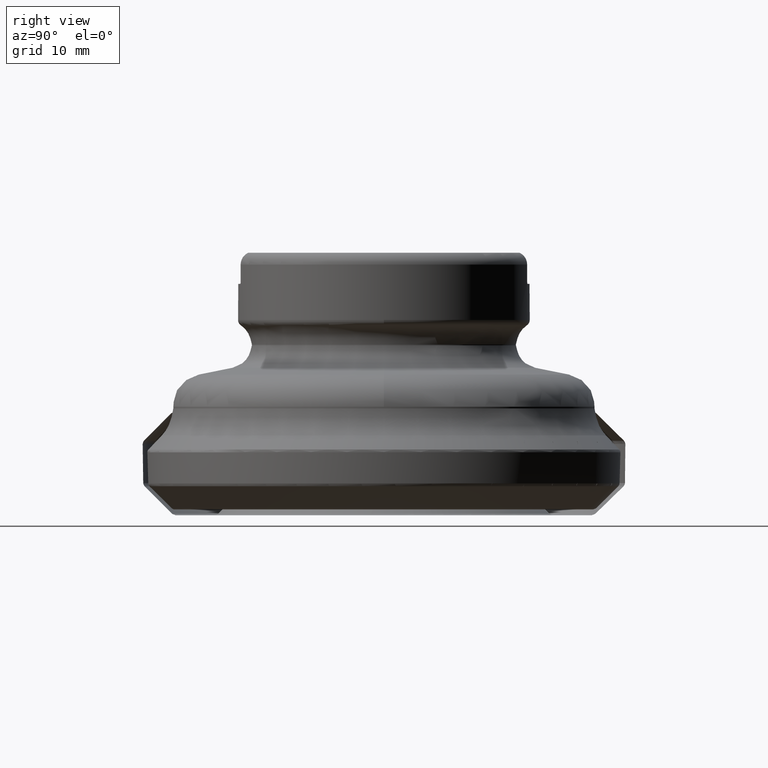
[diagram: clean part render]
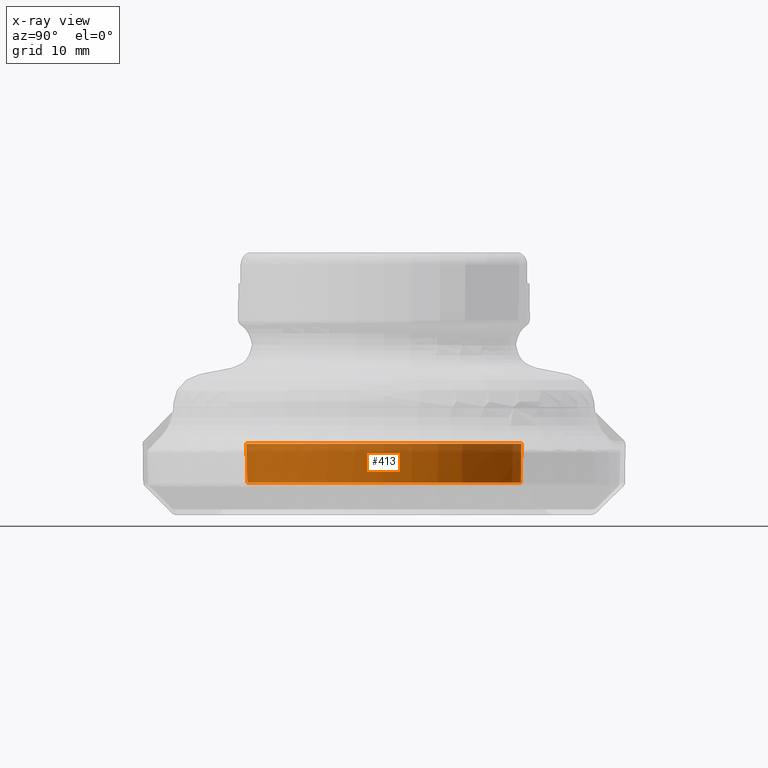
[diagram: x-ray — body ghosted, one internal face saturated and labeled with its STEP entity id]
A machine part, right view, then the same camera in x-ray: the body is ghosted and one INTERNAL B-rep face — a face not visible from any outside direction — is saturated and labeled: STEP entity #413.
In plain terms, the highlighted face is a SurfaceOfRevolution surface.
Its self-contained STEP definition (entity closure, byte-faithful):
#134=SURFACE_OF_REVOLUTION('',#320,#159);
#159=AXIS1_PLACEMENT('',#2100,#1360);
#274=FACE_BOUND('',#554,.T.);
#275=FACE_BOUND('',#555,.T.);
#320=LINE('',#2099,#348);
#348=VECTOR('',#1359,5.97815706144227);
#413=ADVANCED_FACE('',(#274,#275),#134,.F.);
#554=EDGE_LOOP('',(#799));
#555=EDGE_LOOP('',(#800));
#593=CIRCLE('',#1104,20.9790301102204);
#608=CIRCLE('',#1119,20.886732044877);
#799=ORIENTED_EDGE('',*,*,#976,.T.);
#800=ORIENTED_EDGE('',*,*,#961,.F.);
#865=VERTEX_POINT('',#2014);
#880=VERTEX_POINT('',#2093);
#961=EDGE_CURVE('',#865,#865,#593,.T.);
#976=EDGE_CURVE('',#880,#880,#608,.T.);
#1104=AXIS2_PLACEMENT_3D('',#2013,#1305,#1306);
#1119=AXIS2_PLACEMENT_3D('',#2092,#1356,#1357);
#1305=DIRECTION('',(1.17145536458252E-15,0.,1.));
#1306=DIRECTION('',(1.,0.,-1.15763829576868E-15));
#1356=DIRECTION('',(1.17145536458252E-15,0.,1.));
#1357=DIRECTION('',(1.,0.,-1.16275387703037E-15));
#1359=DIRECTION('',(-0.121869343405149,0.00166028784697373,-0.992544763011857));
#1360=DIRECTION('',(1.17145536458252E-15,0.,1.));
#2013=CARTESIAN_POINT('',(1.27381532701314E-14,0.,10.8737845719551));
#2014=CARTESIAN_POINT('',(20.9790301102204,0.,10.873784571955));
#2092=CARTESIAN_POINT('',(5.78721920956249E-15,0.,4.94019608815817));
#2093=CARTESIAN_POINT('',(20.8867320448771,0.,4.94019608815815));
#2099=CARTESIAN_POINT('',(2.73288838744786,-20.8002650326213,10.873784571955));
#2100=CARTESIAN_POINT('',(0.,0.,0.));